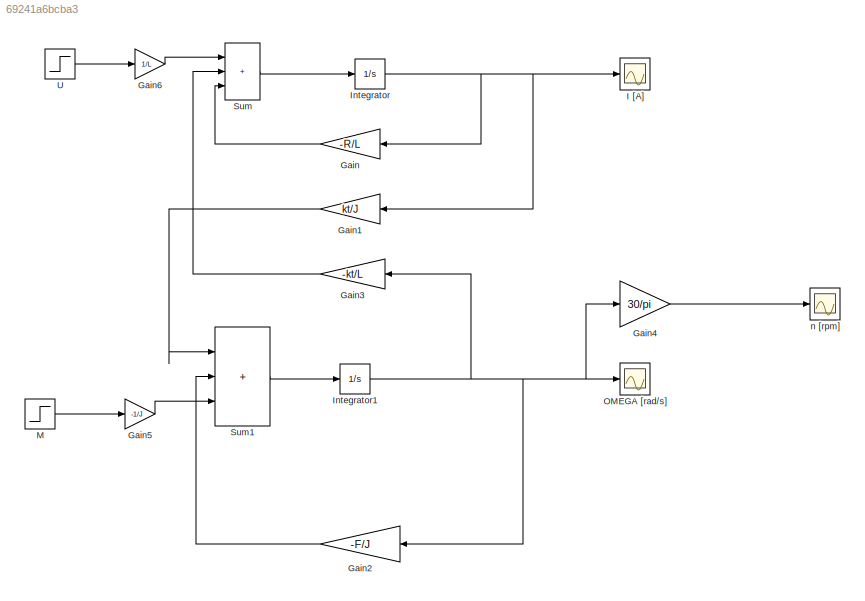
MODEL slx_69241a6bcba3
KIND model
CONFIG AbsTol = auto
CONFIG EnableMultiTasking = off
CONFIG FixedStep = auto
CONFIG MaxStep = auto
CONFIG MinStep = auto
CONFIG RelTol = 1e-3
CONFIG SampleTimeConstraint = Unconstrained
CONFIG Solver = VariableStepAuto
CONFIG SolverName = VariableStepAuto
CONFIG StartTime = 0.0
CONFIG StopTime = 3
BLOCK [Gain] Gain
  Gain = -R/L
  NameLocation = top
BLOCK [Gain] Gain1
  Gain = kt/J
  NameLocation = top
BLOCK [Gain] Gain2
  Gain = -F/J
  NameLocation = top
BLOCK [Gain] Gain3
  Gain = -kt/L
  NameLocation = top
BLOCK [Gain] Gain4
  Gain = 30/pi
BLOCK [Gain] Gain5
  Gain = -1/J
BLOCK [Gain] Gain6
  Gain = 1/L
BLOCK [Scope] I [A]
  Floating = off
  NumInputPorts = 1
  Ports = [1]
  ScopeSpecificationString = Simulink.scopes.TimeScopeBlockCfg('CurrentConfiguration', extmgr.ConfigurationSet(extmgr.Configuration('Core','General UI',true),extmgr.Configuration('Core','Source UI',true),extmgr.Configuration('Sources','WiredSimulink',true),extmgr.Configuration('Visuals','Time Domain',true,'SerializedDisplays',{struct('MinYLimReal','-3.20511','MaxYLimReal','10.21229','YLabelReal','','MinYLimMag','0.00000','Max...<+1412ch>
BLOCK [Integrator] Integrator
  Ports = [1, 1]
BLOCK [Integrator] Integrator1
  Ports = [1, 1]
BLOCK [Step] M
  After = 12
  SampleTime = 0
BLOCK [Scope] OMEGA [rad//s]
  Floating = off
  NumInputPorts = 1
  Ports = [1]
  ScopeSpecificationString = Simulink.scopes.TimeScopeBlockCfg('CurrentConfiguration', extmgr.ConfigurationSet(extmgr.Configuration('Core','General UI',true),extmgr.Configuration('Core','Source UI',true),extmgr.Configuration('Sources','WiredSimulink',true,'DataLoggingVariableName','ScopeData1'),extmgr.Configuration('Visuals','Time Domain',true,'SerializedDisplays',{struct('MinYLimReal','-130.85809','MaxYLimReal','1177.72278',...<+1443ch>
BLOCK [Sum] Sum
  IconShape = rectangular
  Inputs = |+++
  Ports = [3, 1]
BLOCK [Sum] Sum1
  IconShape = rectangular
  Inputs = |+++
  Ports = [3, 1]
BLOCK [Step] U
  After = U
  SampleTime = 0
  Time = 0
BLOCK [Scope] n [rpm]
  Floating = off
  NumInputPorts = 1
  Ports = [1]
  ScopeSpecificationString = Simulink.scopes.TimeScopeBlockCfg('CurrentConfiguration', extmgr.ConfigurationSet(extmgr.Configuration('Core','General UI',true),extmgr.Configuration('Core','Source UI',true),extmgr.Configuration('Sources','WiredSimulink',true,'DataLoggingVariableName','ScopeData2'),extmgr.Configuration('Visuals','Time Domain',true,'SerializedDisplays',{struct('MinYLimReal','-79.64323','MaxYLimReal','320.84506','Y...<+1451ch>
LINE Gain1:1 -> Sum1:1
LINE Gain2:1 -> Sum1:2
LINE Gain3:1 -> Sum:2
LINE Gain4:1 -> n [rpm]:1
LINE Gain5:1 -> Sum1:3
LINE Gain6:1 -> Sum:1
LINE Gain:1 -> Sum:3
NET Integrator1:1 -> Gain2:1, Gain3:1, Gain4:1, OMEGA [rad//s]:1
NET Integrator:1 -> Gain1:1, Gain:1, I [A]:1
LINE M:1 -> Gain5:1
LINE Sum1:1 -> Integrator1:1
LINE Sum:1 -> Integrator:1
LINE U:1 -> Gain6:1
note: NET lines group one-source signal fan-out (src -> all destinations, sorted); 1:1 wires keep LINE
